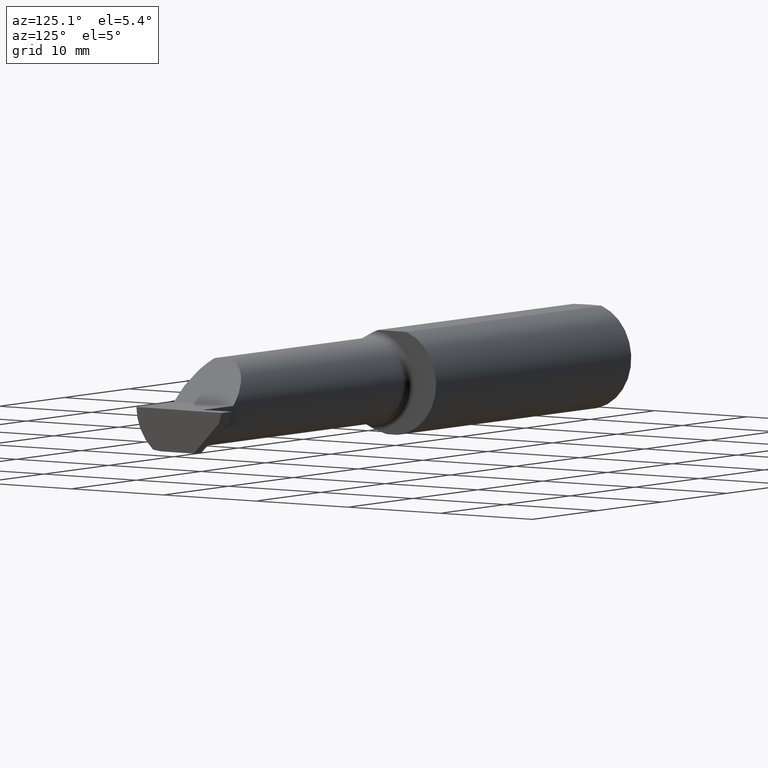
[diagram: clean part render]
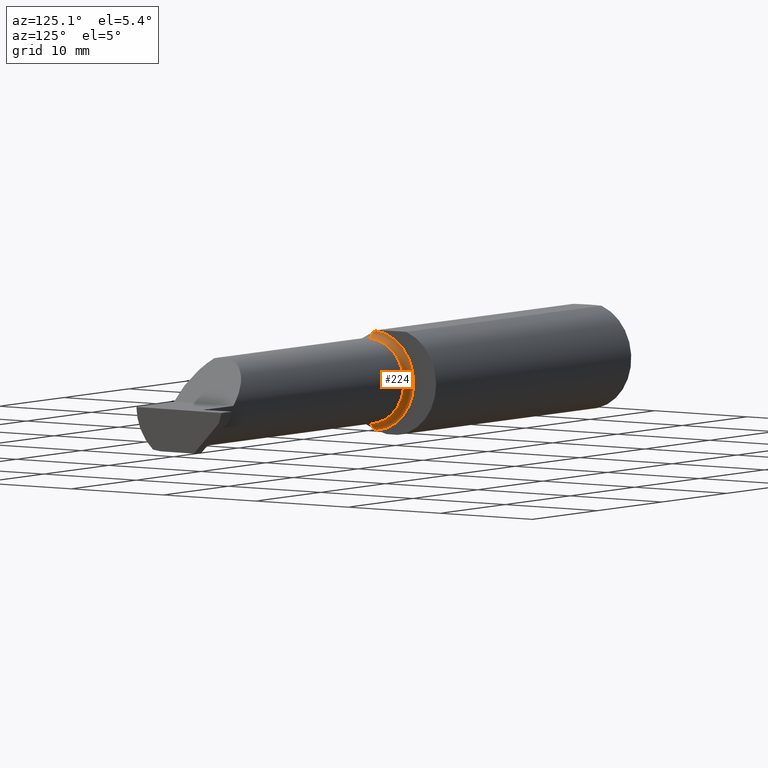
[diagram: same view with one face highlighted and labeled with its STEP entity id]
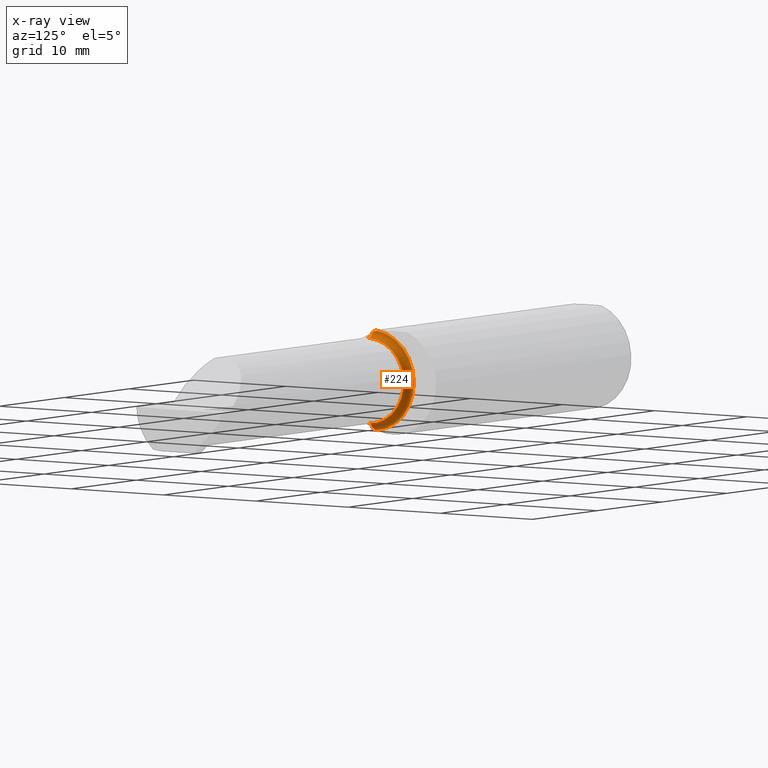
[diagram: x-ray of the same camera — body ghosted, the highlighted face saturated]
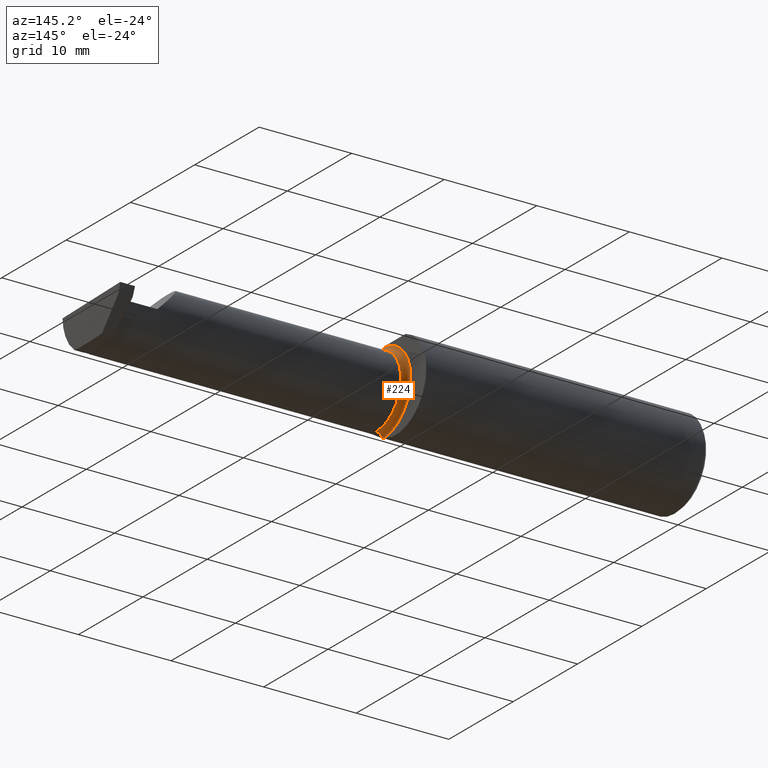
[diagram: same view with one face highlighted and labeled with its STEP entity id]
A machine part, auxiliary view. The second image highlights one B-rep face of the part: STEP entity #224.
The next image is the same camera in x-ray: the body ghosted, the highlighted face saturated — about 0% of this face is hidden behind the body in this view.
A second angle (auxiliary view) of the same face is appended — the face is thin or edge-on in the first view.
In plain terms, the highlighted toroidal blend (fillet) surface has major radius 4.445 mm and minor (blend) radius 0.635 mm.
Its self-contained STEP definition (entity closure, byte-faithful):
#13 = CARTESIAN_POINT ( 'NONE',  ( 1.199999999999999956, -0.06851976604679065053, 0.1743704796142198643 ) ) ;
#35 = CARTESIAN_POINT ( 'NONE',  ( 1.225000000000000089, -0.08334999999999995191, 0.1749999999999999889 ) ) ;
#45 = ORIENTED_EDGE ( 'NONE', *, *, #662, .F. ) ;
#61 = VERTEX_POINT ( 'NONE', #77 ) ;
#69 = CARTESIAN_POINT ( 'NONE',  ( 1.225000000000000089, -0.08334999999999992415, -0.1749999999999999889 ) ) ;
#77 = CARTESIAN_POINT ( 'NONE',  ( 1.199999999999999956, -0.06851976604679065053, -0.1743704796142198643 ) ) ;
#84 = VERTEX_POINT ( 'NONE', #557 ) ;
#93 = CARTESIAN_POINT ( 'NONE',  ( 1.199999999999999956, -0.07359296612170562746, -0.1723769398647691520 ) ) ;
#94 = CARTESIAN_POINT ( 'NONE',  ( 1.199999999999999956, -0.08334999999999996578, 0.000000000000000000 ) ) ;
#101 = ORIENTED_EDGE ( 'NONE', *, *, #1032, .T. ) ;
#109 = DIRECTION ( 'NONE',  ( 0.000000000000000000, -1.000000000000000000, 0.000000000000000000 ) ) ;
#129 = DIRECTION ( 'NONE',  ( 0.000000000000000000, 0.000000000000000000, 1.000000000000000000 ) ) ;
#175 = EDGE_CURVE ( 'NONE', #592, #462, #643, .T. ) ;
#218 = CIRCLE ( 'NONE', #625, 0.02500000000000007425 ) ;
#224 = ADVANCED_FACE ( 'NONE', ( #1037 ), #611, .F. ) ;
#229 = CARTESIAN_POINT ( 'NONE',  ( 1.199999999999999956, -0.06851976604679065053, -0.1743704796142198643 ) ) ;
#260 = CARTESIAN_POINT ( 'NONE',  ( 1.199999999999999734, -0.07360907839729498303, 0.1723706084642000480 ) ) ;
#298 = EDGE_CURVE ( 'NONE', #667, #61, #800, .T. ) ;
#299 = ORIENTED_EDGE ( 'NONE', *, *, #175, .T. ) ;
#385 = AXIS2_PLACEMENT_3D ( 'NONE', #1028, #534, #129 ) ;
#386 = CARTESIAN_POINT ( 'NONE',  ( 1.199999999999999956, -0.06851976604679065053, 0.1743704796142198643 ) ) ;
#397 = CARTESIAN_POINT ( 'NONE',  ( 1.201062863587535334, -0.08334999999999988252, -0.1677879614275112896 ) ) ;
#402 = DIRECTION ( 'NONE',  ( 0.000000000000000000, 0.000000000000000000, 1.000000000000000000 ) ) ;
#403 = DIRECTION ( 'NONE',  ( -1.000000000000000000, -0.000000000000000000, -0.000000000000000000 ) ) ;
#419 = DIRECTION ( 'NONE',  ( 0.000000000000000000, 0.000000000000000000, -1.000000000000000000 ) ) ;
#427 = CARTESIAN_POINT ( 'NONE',  ( 1.225000000000000089, -0.08334999999999995191, -0.1499999999999999667 ) ) ;
#432 = CARTESIAN_POINT ( 'NONE',  ( 1.201062863587535334, -0.08334999999999988252, -0.1677879614275112896 ) ) ;
#439 = EDGE_CURVE ( 'NONE', #84, #592, #511, .T. ) ;
#442 = VERTEX_POINT ( 'NONE', #432 ) ;
#462 = VERTEX_POINT ( 'NONE', #427 ) ;
#500 = CARTESIAN_POINT ( 'NONE',  ( 1.201062863587533780, -0.08334999999998816966, 0.1677879614275171183 ) ) ;
#511 = CIRCLE ( 'NONE', #714, 0.02500000000000007425 ) ;
#534 = DIRECTION ( 'NONE',  ( -1.000000000000000000, -0.000000000000000000, -0.000000000000000000 ) ) ;
#557 = CARTESIAN_POINT ( 'NONE',  ( 1.201062863587533780, -0.08334999999998816966, 0.1677879614275171183 ) ) ;
#586 = CARTESIAN_POINT ( 'NONE',  ( 1.200344683557281300, -0.07855153123406184712, 0.1701716388274757408 ) ) ;
#592 = VERTEX_POINT ( 'NONE', #1018 ) ;
#611 = TOROIDAL_SURFACE ( 'NONE', #703, 0.1749999999999999889, 0.02500000000000007772 ) ;
#625 = AXIS2_PLACEMENT_3D ( 'NONE', #69, #965, #402 ) ;
#639 = DIRECTION ( 'NONE',  ( -1.000000000000000000, -0.000000000000000000, -0.000000000000000000 ) ) ;
#643 = CIRCLE ( 'NONE', #385, 0.1499999999999999667 ) ;
#646 = CARTESIAN_POINT ( 'NONE',  ( 1.200346246588684940, -0.07856197451716394331, -0.1701664510438046507 ) ) ;
#647 = DIRECTION ( 'NONE',  ( 0.000000000000000000, 0.000000000000000000, 1.000000000000000000 ) ) ;
#662 = EDGE_CURVE ( 'NONE', #442, #462, #218, .T. ) ;
#667 = VERTEX_POINT ( 'NONE', #386 ) ;
#703 = AXIS2_PLACEMENT_3D ( 'NONE', #806, #403, #647 ) ;
#707 = ORIENTED_EDGE ( 'NONE', *, *, #298, .F. ) ;
#711 = B_SPLINE_CURVE_WITH_KNOTS ( 'NONE', 3,
 ( #13, #260, #586, #500 ),
 .UNSPECIFIED., .F., .F.,
 ( 4, 4 ),
 ( 4.423516731080792778E-05, 0.0004561457252213476873 ),
 .UNSPECIFIED. ) ;
#714 = AXIS2_PLACEMENT_3D ( 'NONE', #35, #109, #419 ) ;
#738 = B_SPLINE_CURVE_WITH_KNOTS ( 'NONE', 3,
 ( #397, #646, #93, #229 ),
 .UNSPECIFIED., .F., .F.,
 ( 4, 4 ),
 ( 0.001278539404338888737, 0.001694873732696236101 ),
 .UNSPECIFIED. ) ;
#746 = EDGE_CURVE ( 'NONE', #442, #61, #738, .T. ) ;
#800 = CIRCLE ( 'NONE', #948, 0.1749999999999999889 ) ;
#806 = CARTESIAN_POINT ( 'NONE',  ( 1.225000000000000089, -0.08334999999999995191, 0.000000000000000000 ) ) ;
#948 = AXIS2_PLACEMENT_3D ( 'NONE', #94, #639, #1041 ) ;
#965 = DIRECTION ( 'NONE',  ( -0.000000000000000000, 1.000000000000000000, 1.224646799147353207E-16 ) ) ;
#971 = EDGE_LOOP ( 'NONE', ( #45, #1009, #707, #101, #1025, #299 ) ) ;
#1009 = ORIENTED_EDGE ( 'NONE', *, *, #746, .T. ) ;
#1018 = CARTESIAN_POINT ( 'NONE',  ( 1.225000000000000089, -0.08334999999999996578, 0.1499999999999999667 ) ) ;
#1025 = ORIENTED_EDGE ( 'NONE', *, *, #439, .T. ) ;
#1028 = CARTESIAN_POINT ( 'NONE',  ( 1.225000000000000089, -0.08334999999999996578, 0.000000000000000000 ) ) ;
#1032 = EDGE_CURVE ( 'NONE', #667, #84, #711, .T. ) ;
#1037 = FACE_OUTER_BOUND ( 'NONE', #971, .T. ) ;
#1041 = DIRECTION ( 'NONE',  ( 0.000000000000000000, 0.000000000000000000, 1.000000000000000000 ) ) ;